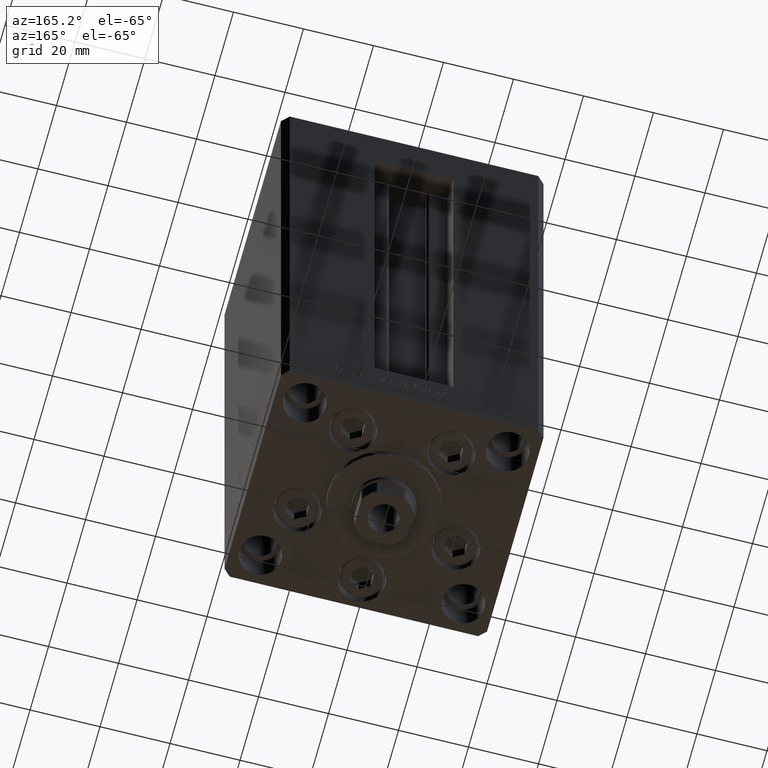
[diagram: clean part render]
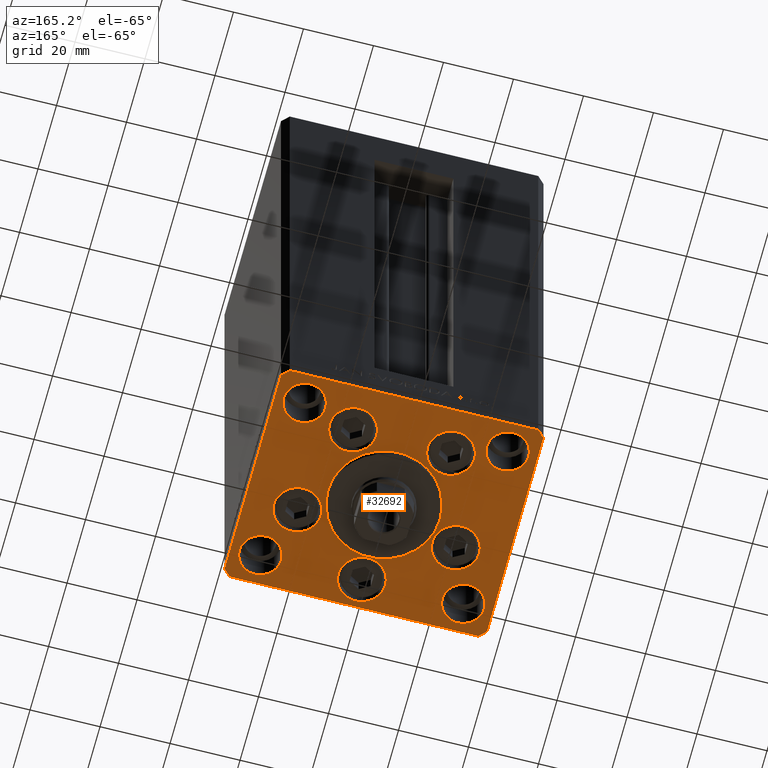
[diagram: same view with one face highlighted and labeled with its STEP entity id]
A machine part, auxiliary view. The second image highlights one B-rep face of the part: STEP entity #32692.
In plain terms, the highlighted planar face has unit normal (0, 0, -1).
Its self-contained STEP definition (entity closure, byte-faithful):
#3 = DIRECTION ( 'NONE',  ( 1.000000000000000000, 0.000000000000000000, 0.000000000000000000 ) ) ;
#294 = VERTEX_POINT ( 'NONE', #18620 ) ;
#488 = CARTESIAN_POINT ( 'NONE',  ( 29.00000000000000355, -23.99999999999999645, 0.000000000000000000 ) ) ;
#580 = ORIENTED_EDGE ( 'NONE', *, *, #16930, .F. ) ;
#890 = CARTESIAN_POINT ( 'NONE',  ( -29.00000000000000000, -23.99999999999999645, 0.000000000000000000 ) ) ;
#983 = DIRECTION ( 'NONE',  ( 0.000000000000000000, 0.000000000000000000, 1.000000000000000000 ) ) ;
#1258 = DIRECTION ( 'NONE',  ( 1.000000000000000000, 0.000000000000000000, 0.000000000000000000 ) ) ;
#1412 = VERTEX_POINT ( 'NONE', #14008 ) ;
#1589 = CIRCLE ( 'NONE', #36070, 6.750000000001552536 ) ;
#1816 = FACE_BOUND ( 'NONE', #3662, .T. ) ;
#2352 = AXIS2_PLACEMENT_3D ( 'NONE', #49417, #22529, #3695 ) ;
#2527 = AXIS2_PLACEMENT_3D ( 'NONE', #34456, #42223, #42983 ) ;
#2717 = ORIENTED_EDGE ( 'NONE', *, *, #40751, .F. ) ;
#2857 = ORIENTED_EDGE ( 'NONE', *, *, #9047, .F. ) ;
#2860 = EDGE_CURVE ( 'NONE', #9678, #3786, #19229, .T. ) ;
#3002 = CIRCLE ( 'NONE', #39102, 6.750000000000000000 ) ;
#3337 = VERTEX_POINT ( 'NONE', #17666 ) ;
#3507 = DIRECTION ( 'NONE',  ( 0.000000000000000000, 0.000000000000000000, 1.000000000000000000 ) ) ;
#3604 = VERTEX_POINT ( 'NONE', #10835 ) ;
#3662 = EDGE_LOOP ( 'NONE', ( #45549, #10054 ) ) ;
#3686 = VERTEX_POINT ( 'NONE', #44985 ) ;
#3695 = DIRECTION ( 'NONE',  ( 1.000000000000000000, 0.000000000000000000, 0.000000000000000000 ) ) ;
#3786 = VERTEX_POINT ( 'NONE', #7305 ) ;
#4022 = CARTESIAN_POINT ( 'NONE',  ( -15.87741699796953476, -8.000000000000000000, 0.000000000000000000 ) ) ;
#4068 = VERTEX_POINT ( 'NONE', #7674 ) ;
#4211 = VERTEX_POINT ( 'NONE', #27001 ) ;
#4235 = EDGE_CURVE ( 'NONE', #29524, #25006, #26377, .T. ) ;
#4247 = CARTESIAN_POINT ( 'NONE',  ( -35.50000000000000711, 32.49999999999997868, 0.000000000000000000 ) ) ;
#4305 = CARTESIAN_POINT ( 'NONE',  ( -37.50000000000001421, 30.50000000000000000, 0.000000000000000000 ) ) ;
#4428 = CARTESIAN_POINT ( 'NONE',  ( -35.50000000000001421, -32.50000000000000711, 0.000000000000000000 ) ) ;
#4666 = DIRECTION ( 'NONE',  ( 0.000000000000000000, 0.000000000000000000, 1.000000000000000000 ) ) ;
#4669 = EDGE_CURVE ( 'NONE', #3686, #3337, #33601, .T. ) ;
#4727 = AXIS2_PLACEMENT_3D ( 'NONE', #37861, #30091, #38347 ) ;
#5092 = DIRECTION ( 'NONE',  ( -0.000000000000000000, 0.000000000000000000, 1.000000000000000000 ) ) ;
#5242 = VERTEX_POINT ( 'NONE', #6525 ) ;
#5261 = EDGE_CURVE ( 'NONE', #43356, #49121, #18055, .T. ) ;
#5512 = DIRECTION ( 'NONE',  ( -0.7071067811865524577, 0.7071067811865426878, 0.000000000000000000 ) ) ;
#5581 = FACE_BOUND ( 'NONE', #34047, .T. ) ;
#5945 = CARTESIAN_POINT ( 'NONE',  ( 37.50000000000000711, -30.49999999999992895, 0.000000000000000000 ) ) ;
#6525 = CARTESIAN_POINT ( 'NONE',  ( 35.50000000000001421, -32.49999999999992184, 0.000000000000000000 ) ) ;
#6596 = CARTESIAN_POINT ( 'NONE',  ( 37.50000000000000711, 30.50000000000001421, 0.000000000000000000 ) ) ;
#6660 = ORIENTED_EDGE ( 'NONE', *, *, #4669, .F. ) ;
#6704 = CARTESIAN_POINT ( 'NONE',  ( 0.000000000000000000, -6.938893903907228378E-15, 0.000000000000000000 ) ) ;
#7025 = EDGE_CURVE ( 'NONE', #18608, #32186, #1589, .T. ) ;
#7101 = CARTESIAN_POINT ( 'NONE',  ( 35.00000000000000000, 24.00000000000000355, 0.000000000000000000 ) ) ;
#7122 = CIRCLE ( 'NONE', #4727, 5.999999999999998224 ) ;
#7300 = EDGE_CURVE ( 'NONE', #3337, #3686, #23233, .T. ) ;
#7305 = CARTESIAN_POINT ( 'NONE',  ( -29.37741699796953654, -8.000000000000000000, 0.000000000000000000 ) ) ;
#7674 = CARTESIAN_POINT ( 'NONE',  ( -16.00000000000000355, -6.938893903907228378E-15, 0.000000000000000000 ) ) ;
#7830 = CIRCLE ( 'NONE', #48745, 5.999999999999998224 ) ;
#7864 = EDGE_LOOP ( 'NONE', ( #46066, #41706 ) ) ;
#8295 = ORIENTED_EDGE ( 'NONE', *, *, #17358, .T. ) ;
#8547 = CARTESIAN_POINT ( 'NONE',  ( -20.74106857963324302, 19.50000000000000000, 0.000000000000000000 ) ) ;
#8678 = DIRECTION ( 'NONE',  ( 1.000000000000000000, 0.000000000000000000, 0.000000000000000000 ) ) ;
#9047 = EDGE_CURVE ( 'NONE', #32186, #18608, #24117, .T. ) ;
#9065 = VERTEX_POINT ( 'NONE', #13675 ) ;
#9119 = CIRCLE ( 'NONE', #37167, 6.000000000000001776 ) ;
#9678 = VERTEX_POINT ( 'NONE', #4022 ) ;
#9710 = LINE ( 'NONE', #5945, #43944 ) ;
#9767 = DIRECTION ( 'NONE',  ( 1.000000000000000000, 0.000000000000000000, 0.000000000000000000 ) ) ;
#9883 = CARTESIAN_POINT ( 'NONE',  ( -22.62741699796953299, -8.000000000000000000, 0.000000000000000000 ) ) ;
#9921 = ORIENTED_EDGE ( 'NONE', *, *, #42436, .T. ) ;
#10054 = ORIENTED_EDGE ( 'NONE', *, *, #44562, .F. ) ;
#10123 = ORIENTED_EDGE ( 'NONE', *, *, #38498, .F. ) ;
#10538 = DIRECTION ( 'NONE',  ( 0.000000000000000000, 0.000000000000000000, 1.000000000000000000 ) ) ;
#10592 = CIRCLE ( 'NONE', #12201, 16.00000000000000355 ) ;
#10835 = CARTESIAN_POINT ( 'NONE',  ( 20.74106857963323947, 19.50000000000000000, 0.000000000000000000 ) ) ;
#10853 = CARTESIAN_POINT ( 'NONE',  ( 35.50000000000000000, 32.49999999999999289, 0.000000000000000000 ) ) ;
#11042 = ORIENTED_EDGE ( 'NONE', *, *, #7025, .F. ) ;
#11302 = EDGE_CURVE ( 'NONE', #34282, #43356, #31625, .T. ) ;
#11325 = EDGE_LOOP ( 'NONE', ( #41308, #2717 ) ) ;
#11563 = EDGE_LOOP ( 'NONE', ( #25408, #40378 ) ) ;
#12133 = VERTEX_POINT ( 'NONE', #7101 ) ;
#12201 = AXIS2_PLACEMENT_3D ( 'NONE', #42683, #31894, #1258 ) ;
#12351 = ORIENTED_EDGE ( 'NONE', *, *, #17028, .F. ) ;
#12491 = CARTESIAN_POINT ( 'NONE',  ( -37.50000000000000000, -30.50000000000004263, 0.000000000000000000 ) ) ;
#12637 = CARTESIAN_POINT ( 'NONE',  ( 22.62741699796953299, -8.000000000000000000, 0.000000000000000000 ) ) ;
#13104 = ORIENTED_EDGE ( 'NONE', *, *, #5261, .T. ) ;
#13119 = FACE_BOUND ( 'NONE', #33331, .T. ) ;
#13416 = CARTESIAN_POINT ( 'NONE',  ( -22.62741699796953299, -8.000000000000000000, 0.000000000000000000 ) ) ;
#13541 = CARTESIAN_POINT ( 'NONE',  ( 37.50000000000000711, 30.50000000000001421, 0.000000000000000000 ) ) ;
#13675 = CARTESIAN_POINT ( 'NONE',  ( -7.241068579633241242, 19.50000000000000000, 0.000000000000000000 ) ) ;
#13790 = CIRCLE ( 'NONE', #2527, 6.000000000000001776 ) ;
#13933 = VERTEX_POINT ( 'NONE', #41581 ) ;
#13934 = EDGE_LOOP ( 'NONE', ( #12351, #37880 ) ) ;
#14008 = CARTESIAN_POINT ( 'NONE',  ( -35.00000000000000000, 24.00000000000000711, 0.000000000000000000 ) ) ;
#14140 = ORIENTED_EDGE ( 'NONE', *, *, #40772, .T. ) ;
#14365 = VECTOR ( 'NONE', #37394, 1000.000000000000000 ) ;
#14543 = ORIENTED_EDGE ( 'NONE', *, *, #7300, .F. ) ;
#14550 = DIRECTION ( 'NONE',  ( 1.000000000000000000, 0.000000000000000000, 0.000000000000000000 ) ) ;
#14997 = CARTESIAN_POINT ( 'NONE',  ( 16.00000000000000355, -4.979459025271462852E-15, 0.000000000000000000 ) ) ;
#15252 = AXIS2_PLACEMENT_3D ( 'NONE', #23822, #983, #31622 ) ;
#15651 = ORIENTED_EDGE ( 'NONE', *, *, #37162, .F. ) ;
#15793 = DIRECTION ( 'NONE',  ( 1.000000000000000000, 0.000000000000000000, 0.000000000000000000 ) ) ;
#16366 = ORIENTED_EDGE ( 'NONE', *, *, #11302, .T. ) ;
#16467 = EDGE_LOOP ( 'NONE', ( #47353, #14140, #19155, #8295, #38133, #9921, #16366, #13104 ) ) ;
#16760 = CARTESIAN_POINT ( 'NONE',  ( -23.00000000000000000, -23.99999999999999645, 0.000000000000000000 ) ) ;
#16930 = EDGE_CURVE ( 'NONE', #4211, #25996, #7830, .T. ) ;
#17025 = CARTESIAN_POINT ( 'NONE',  ( 29.00000000000000000, 24.00000000000000355, 0.000000000000000000 ) ) ;
#17028 = EDGE_CURVE ( 'NONE', #9065, #35268, #3002, .T. ) ;
#17146 = VECTOR ( 'NONE', #5512, 1000.000000000000000 ) ;
#17163 = DIRECTION ( 'NONE',  ( 1.000000000000000000, 0.000000000000000000, 0.000000000000000000 ) ) ;
#17228 = ORIENTED_EDGE ( 'NONE', *, *, #31614, .F. ) ;
#17358 = EDGE_CURVE ( 'NONE', #27590, #45080, #9710, .T. ) ;
#17666 = CARTESIAN_POINT ( 'NONE',  ( 15.87741699796952410, -8.000000000000000000, 0.000000000000000000 ) ) ;
#17761 = VECTOR ( 'NONE', #34634, 1000.000000000000000 ) ;
#17960 = CIRCLE ( 'NONE', #21236, 6.749999999999997335 ) ;
#18055 = LINE ( 'NONE', #41172, #14365 ) ;
#18229 = CIRCLE ( 'NONE', #20646, 6.749999999999999112 ) ;
#18490 = DIRECTION ( 'NONE',  ( 0.000000000000000000, 0.000000000000000000, 1.000000000000000000 ) ) ;
#18608 = VERTEX_POINT ( 'NONE', #22910 ) ;
#18620 = CARTESIAN_POINT ( 'NONE',  ( 23.00000000000000000, 24.00000000000000355, 0.000000000000000000 ) ) ;
#18637 = LINE ( 'NONE', #30197, #28638 ) ;
#18724 = VERTEX_POINT ( 'NONE', #40967 ) ;
#19104 = CARTESIAN_POINT ( 'NONE',  ( -35.00000000000000000, -23.99999999999999645, 0.000000000000000000 ) ) ;
#19155 = ORIENTED_EDGE ( 'NONE', *, *, #33429, .T. ) ;
#19229 = CIRCLE ( 'NONE', #45703, 6.749999999999999112 ) ;
#19234 = CARTESIAN_POINT ( 'NONE',  ( -29.00000000000000000, -23.99999999999999645, 0.000000000000000000 ) ) ;
#19447 = VECTOR ( 'NONE', #26161, 1000.000000000000000 ) ;
#19555 = AXIS2_PLACEMENT_3D ( 'NONE', #19234, #34326, #33598 ) ;
#19920 = EDGE_CURVE ( 'NONE', #25996, #4211, #7122, .T. ) ;
#19977 = EDGE_CURVE ( 'NONE', #49121, #44973, #31827, .T. ) ;
#19984 = CIRCLE ( 'NONE', #2352, 6.749999999999997335 ) ;
#20338 = CARTESIAN_POINT ( 'NONE',  ( 13.99106857963324124, 19.50000000000000000, 0.000000000000000000 ) ) ;
#20364 = AXIS2_PLACEMENT_3D ( 'NONE', #17025, #28826, #48172 ) ;
#20401 = DIRECTION ( 'NONE',  ( 1.000000000000000000, 0.000000000000000000, 0.000000000000000000 ) ) ;
#20646 = AXIS2_PLACEMENT_3D ( 'NONE', #9883, #39780, #17163 ) ;
#20820 = CARTESIAN_POINT ( 'NONE',  ( -13.99106857963324124, 19.50000000000000000, 0.000000000000000000 ) ) ;
#20896 = FACE_BOUND ( 'NONE', #36019, .T. ) ;
#20997 = AXIS2_PLACEMENT_3D ( 'NONE', #46613, #4666, #8678 ) ;
#21092 = VECTOR ( 'NONE', #46964, 1000.000000000000000 ) ;
#21215 = DIRECTION ( 'NONE',  ( 0.000000000000000000, 0.000000000000000000, 1.000000000000000000 ) ) ;
#21236 = AXIS2_PLACEMENT_3D ( 'NONE', #20338, #46972, #3 ) ;
#21514 = EDGE_CURVE ( 'NONE', #3604, #18724, #19984, .T. ) ;
#22200 = ORIENTED_EDGE ( 'NONE', *, *, #21514, .F. ) ;
#22478 = DIRECTION ( 'NONE',  ( 0.000000000000000000, 1.000000000000000000, 0.000000000000000000 ) ) ;
#22529 = DIRECTION ( 'NONE',  ( 0.000000000000000000, 0.000000000000000000, 1.000000000000000000 ) ) ;
#22643 = DIRECTION ( 'NONE',  ( 1.000000000000000000, 1.172770800660376149E-15, 0.000000000000000000 ) ) ;
#22910 = CARTESIAN_POINT ( 'NONE',  ( 6.750000000001552536, -24.00000000000001066, 0.000000000000000000 ) ) ;
#23233 = CIRCLE ( 'NONE', #15252, 6.750000000000009770 ) ;
#23822 = CARTESIAN_POINT ( 'NONE',  ( 22.62741699796953299, -8.000000000000000000, 0.000000000000000000 ) ) ;
#23841 = CARTESIAN_POINT ( 'NONE',  ( 35.50000000000001421, -32.49999999999992184, 0.000000000000000000 ) ) ;
#23844 = LINE ( 'NONE', #13541, #17146 ) ;
#23882 = VERTEX_POINT ( 'NONE', #14997 ) ;
#24117 = CIRCLE ( 'NONE', #24915, 6.750000000001552536 ) ;
#24161 = PLANE ( 'NONE',  #37106 ) ;
#24414 = CIRCLE ( 'NONE', #19555, 6.000000000000001776 ) ;
#24915 = AXIS2_PLACEMENT_3D ( 'NONE', #46594, #27500, #42817 ) ;
#24923 = DIRECTION ( 'NONE',  ( 1.000000000000000000, 0.000000000000000000, 0.000000000000000000 ) ) ;
#25006 = VERTEX_POINT ( 'NONE', #19104 ) ;
#25408 = ORIENTED_EDGE ( 'NONE', *, *, #26912, .F. ) ;
#25698 = DIRECTION ( 'NONE',  ( 1.000000000000000000, 0.000000000000000000, 0.000000000000000000 ) ) ;
#25996 = VERTEX_POINT ( 'NONE', #36421 ) ;
#26161 = DIRECTION ( 'NONE',  ( -1.000000000000000000, -1.954618001100627573E-16, 0.000000000000000000 ) ) ;
#26377 = CIRCLE ( 'NONE', #37595, 6.000000000000001776 ) ;
#26406 = LINE ( 'NONE', #10853, #19447 ) ;
#26912 = EDGE_CURVE ( 'NONE', #12133, #294, #13790, .T. ) ;
#27001 = CARTESIAN_POINT ( 'NONE',  ( 23.00000000000000711, -23.99999999999999645, 0.000000000000000000 ) ) ;
#27246 = EDGE_CURVE ( 'NONE', #29772, #1412, #44969, .T. ) ;
#27500 = DIRECTION ( 'NONE',  ( 0.000000000000000000, 0.000000000000000000, 1.000000000000000000 ) ) ;
#27590 = VERTEX_POINT ( 'NONE', #38338 ) ;
#28158 = DIRECTION ( 'NONE',  ( 1.000000000000000000, 0.000000000000000000, 0.000000000000000000 ) ) ;
#28638 = VECTOR ( 'NONE', #22643, 1000.000000000000000 ) ;
#28826 = DIRECTION ( 'NONE',  ( 0.000000000000000000, 0.000000000000000000, 1.000000000000000000 ) ) ;
#29060 = CARTESIAN_POINT ( 'NONE',  ( -23.00000000000000000, 24.00000000000000711, 0.000000000000000000 ) ) ;
#29524 = VERTEX_POINT ( 'NONE', #16760 ) ;
#29772 = VERTEX_POINT ( 'NONE', #29060 ) ;
#29806 = EDGE_CURVE ( 'NONE', #35268, #9065, #42636, .T. ) ;
#30091 = DIRECTION ( 'NONE',  ( 0.000000000000000000, 0.000000000000000000, 1.000000000000000000 ) ) ;
#30197 = CARTESIAN_POINT ( 'NONE',  ( -35.50000000000001421, -32.50000000000000711, 0.000000000000000000 ) ) ;
#30627 = CARTESIAN_POINT ( 'NONE',  ( -29.00000000000000000, 24.00000000000000711, 0.000000000000000000 ) ) ;
#30873 = DIRECTION ( 'NONE',  ( 1.000000000000000000, 0.000000000000000000, 0.000000000000000000 ) ) ;
#31022 = ORIENTED_EDGE ( 'NONE', *, *, #19920, .F. ) ;
#31090 = EDGE_LOOP ( 'NONE', ( #6660, #14543 ) ) ;
#31614 = EDGE_CURVE ( 'NONE', #23882, #4068, #10592, .T. ) ;
#31622 = DIRECTION ( 'NONE',  ( 1.000000000000000000, 0.000000000000000000, 0.000000000000000000 ) ) ;
#31625 = LINE ( 'NONE', #4247, #17761 ) ;
#31635 = DIRECTION ( 'NONE',  ( 0.000000000000000000, 0.000000000000000000, 1.000000000000000000 ) ) ;
#31827 = LINE ( 'NONE', #12491, #32803 ) ;
#31894 = DIRECTION ( 'NONE',  ( 0.000000000000000000, 0.000000000000000000, 1.000000000000000000 ) ) ;
#32186 = VERTEX_POINT ( 'NONE', #37804 ) ;
#32269 = AXIS2_PLACEMENT_3D ( 'NONE', #30627, #3507, #30873 ) ;
#32513 = CIRCLE ( 'NONE', #39698, 16.00000000000000355 ) ;
#32692 = ADVANCED_FACE ( 'NONE', ( #20896, #33378, #35967, #41152, #5581, #36218, #47534, #1816, #47777, #13119, #47037 ), #24161, .T. ) ;
#32803 = VECTOR ( 'NONE', #38854, 1000.000000000000000 ) ;
#33249 = DIRECTION ( 'NONE',  ( 0.000000000000000000, 0.000000000000000000, 1.000000000000000000 ) ) ;
#33331 = EDGE_LOOP ( 'NONE', ( #31022, #580 ) ) ;
#33378 = FACE_BOUND ( 'NONE', #13934, .T. ) ;
#33429 = EDGE_CURVE ( 'NONE', #5242, #27590, #41936, .T. ) ;
#33598 = DIRECTION ( 'NONE',  ( 1.000000000000000000, 0.000000000000000000, 0.000000000000000000 ) ) ;
#33601 = CIRCLE ( 'NONE', #40015, 6.750000000000009770 ) ;
#34047 = EDGE_LOOP ( 'NONE', ( #11042, #2857 ) ) ;
#34282 = VERTEX_POINT ( 'NONE', #46403 ) ;
#34326 = DIRECTION ( 'NONE',  ( 0.000000000000000000, 0.000000000000000000, 1.000000000000000000 ) ) ;
#34456 = CARTESIAN_POINT ( 'NONE',  ( 29.00000000000000000, 24.00000000000000355, 0.000000000000000000 ) ) ;
#34634 = DIRECTION ( 'NONE',  ( -0.7071067811865524577, -0.7071067811865426878, 0.000000000000000000 ) ) ;
#35268 = VERTEX_POINT ( 'NONE', #8547 ) ;
#35488 = DIRECTION ( 'NONE',  ( 0.000000000000000000, 0.000000000000000000, 1.000000000000000000 ) ) ;
#35942 = EDGE_CURVE ( 'NONE', #45080, #13933, #23844, .T. ) ;
#35967 = FACE_BOUND ( 'NONE', #45373, .T. ) ;
#36019 = EDGE_LOOP ( 'NONE', ( #10123, #17228 ) ) ;
#36070 = AXIS2_PLACEMENT_3D ( 'NONE', #42977, #38705, #28158 ) ;
#36218 = FACE_BOUND ( 'NONE', #11325, .T. ) ;
#36421 = CARTESIAN_POINT ( 'NONE',  ( 35.00000000000000000, -23.99999999999999645, 0.000000000000000000 ) ) ;
#37106 = AXIS2_PLACEMENT_3D ( 'NONE', #44002, #5092, #20401 ) ;
#37162 = EDGE_CURVE ( 'NONE', #18724, #3604, #17960, .T. ) ;
#37167 = AXIS2_PLACEMENT_3D ( 'NONE', #42154, #10538, #14550 ) ;
#37394 = DIRECTION ( 'NONE',  ( 2.275047181608926165E-16, -1.000000000000000000, 0.000000000000000000 ) ) ;
#37595 = AXIS2_PLACEMENT_3D ( 'NONE', #890, #21215, #44079 ) ;
#37804 = CARTESIAN_POINT ( 'NONE',  ( -6.750000000001552536, -24.00000000000001066, 0.000000000000000000 ) ) ;
#37861 = CARTESIAN_POINT ( 'NONE',  ( 29.00000000000000355, -23.99999999999999645, 0.000000000000000000 ) ) ;
#37880 = ORIENTED_EDGE ( 'NONE', *, *, #29806, .F. ) ;
#38133 = ORIENTED_EDGE ( 'NONE', *, *, #35942, .T. ) ;
#38338 = CARTESIAN_POINT ( 'NONE',  ( 37.50000000000000711, -30.49999999999992895, 0.000000000000000000 ) ) ;
#38347 = DIRECTION ( 'NONE',  ( 1.000000000000000000, 0.000000000000000000, 0.000000000000000000 ) ) ;
#38498 = EDGE_CURVE ( 'NONE', #4068, #23882, #32513, .T. ) ;
#38705 = DIRECTION ( 'NONE',  ( 0.000000000000000000, 0.000000000000000000, 1.000000000000000000 ) ) ;
#38854 = DIRECTION ( 'NONE',  ( 0.7071067811865512365, -0.7071067811865439090, 0.000000000000000000 ) ) ;
#39102 = AXIS2_PLACEMENT_3D ( 'NONE', #20820, #31635, #9767 ) ;
#39698 = AXIS2_PLACEMENT_3D ( 'NONE', #6704, #18490, #45363 ) ;
#39780 = DIRECTION ( 'NONE',  ( 0.000000000000000000, 0.000000000000000000, 1.000000000000000000 ) ) ;
#40015 = AXIS2_PLACEMENT_3D ( 'NONE', #12637, #35488, #24923 ) ;
#40378 = ORIENTED_EDGE ( 'NONE', *, *, #44780, .F. ) ;
#40751 = EDGE_CURVE ( 'NONE', #3786, #9678, #18229, .T. ) ;
#40772 = EDGE_CURVE ( 'NONE', #44973, #5242, #18637, .T. ) ;
#40967 = CARTESIAN_POINT ( 'NONE',  ( 7.241068579633242130, 19.50000000000000000, 0.000000000000000000 ) ) ;
#41152 = FACE_BOUND ( 'NONE', #31090, .T. ) ;
#41172 = CARTESIAN_POINT ( 'NONE',  ( -37.50000000000001421, 30.50000000000000000, 0.000000000000000000 ) ) ;
#41308 = ORIENTED_EDGE ( 'NONE', *, *, #2860, .F. ) ;
#41581 = CARTESIAN_POINT ( 'NONE',  ( 35.50000000000000000, 32.49999999999999289, 0.000000000000000000 ) ) ;
#41706 = ORIENTED_EDGE ( 'NONE', *, *, #45785, .F. ) ;
#41936 = LINE ( 'NONE', #23841, #21092 ) ;
#42005 = CIRCLE ( 'NONE', #20364, 6.000000000000001776 ) ;
#42154 = CARTESIAN_POINT ( 'NONE',  ( -29.00000000000000000, 24.00000000000000711, 0.000000000000000000 ) ) ;
#42223 = DIRECTION ( 'NONE',  ( 0.000000000000000000, 0.000000000000000000, 1.000000000000000000 ) ) ;
#42436 = EDGE_CURVE ( 'NONE', #13933, #34282, #26406, .T. ) ;
#42636 = CIRCLE ( 'NONE', #20997, 6.750000000000000000 ) ;
#42683 = CARTESIAN_POINT ( 'NONE',  ( 0.000000000000000000, -6.938893903907228378E-15, 0.000000000000000000 ) ) ;
#42817 = DIRECTION ( 'NONE',  ( 1.000000000000000000, 0.000000000000000000, 0.000000000000000000 ) ) ;
#42931 = DIRECTION ( 'NONE',  ( 0.000000000000000000, 0.000000000000000000, 1.000000000000000000 ) ) ;
#42977 = CARTESIAN_POINT ( 'NONE',  ( 0.000000000000000000, -24.00000000000001066, 0.000000000000000000 ) ) ;
#42983 = DIRECTION ( 'NONE',  ( 1.000000000000000000, 0.000000000000000000, 0.000000000000000000 ) ) ;
#43356 = VERTEX_POINT ( 'NONE', #4305 ) ;
#43477 = CARTESIAN_POINT ( 'NONE',  ( -37.50000000000000000, -30.50000000000004263, 0.000000000000000000 ) ) ;
#43944 = VECTOR ( 'NONE', #22478, 1000.000000000000000 ) ;
#44002 = CARTESIAN_POINT ( 'NONE',  ( 0.000000000000000000, 0.000000000000000000, 0.000000000000000000 ) ) ;
#44079 = DIRECTION ( 'NONE',  ( 1.000000000000000000, 0.000000000000000000, 0.000000000000000000 ) ) ;
#44562 = EDGE_CURVE ( 'NONE', #1412, #29772, #9119, .T. ) ;
#44780 = EDGE_CURVE ( 'NONE', #294, #12133, #42005, .T. ) ;
#44969 = CIRCLE ( 'NONE', #32269, 6.000000000000001776 ) ;
#44973 = VERTEX_POINT ( 'NONE', #4428 ) ;
#44985 = CARTESIAN_POINT ( 'NONE',  ( 29.37741699796954364, -8.000000000000000000, 0.000000000000000000 ) ) ;
#45080 = VERTEX_POINT ( 'NONE', #6596 ) ;
#45363 = DIRECTION ( 'NONE',  ( 1.000000000000000000, 0.000000000000000000, 0.000000000000000000 ) ) ;
#45373 = EDGE_LOOP ( 'NONE', ( #22200, #15651 ) ) ;
#45549 = ORIENTED_EDGE ( 'NONE', *, *, #27246, .F. ) ;
#45703 = AXIS2_PLACEMENT_3D ( 'NONE', #13416, #33249, #25698 ) ;
#45785 = EDGE_CURVE ( 'NONE', #25006, #29524, #24414, .T. ) ;
#46066 = ORIENTED_EDGE ( 'NONE', *, *, #4235, .F. ) ;
#46403 = CARTESIAN_POINT ( 'NONE',  ( -35.50000000000000711, 32.49999999999997868, 0.000000000000000000 ) ) ;
#46594 = CARTESIAN_POINT ( 'NONE',  ( 0.000000000000000000, -24.00000000000001066, 0.000000000000000000 ) ) ;
#46613 = CARTESIAN_POINT ( 'NONE',  ( -13.99106857963324124, 19.50000000000000000, 0.000000000000000000 ) ) ;
#46964 = DIRECTION ( 'NONE',  ( 0.7071067811865463515, 0.7071067811865487940, 0.000000000000000000 ) ) ;
#46972 = DIRECTION ( 'NONE',  ( 0.000000000000000000, 0.000000000000000000, 1.000000000000000000 ) ) ;
#47037 = FACE_OUTER_BOUND ( 'NONE', #16467, .T. ) ;
#47353 = ORIENTED_EDGE ( 'NONE', *, *, #19977, .T. ) ;
#47534 = FACE_BOUND ( 'NONE', #11563, .T. ) ;
#47777 = FACE_BOUND ( 'NONE', #7864, .T. ) ;
#48172 = DIRECTION ( 'NONE',  ( 1.000000000000000000, 0.000000000000000000, 0.000000000000000000 ) ) ;
#48745 = AXIS2_PLACEMENT_3D ( 'NONE', #488, #42931, #15793 ) ;
#49121 = VERTEX_POINT ( 'NONE', #43477 ) ;
#49417 = CARTESIAN_POINT ( 'NONE',  ( 13.99106857963324124, 19.50000000000000000, 0.000000000000000000 ) ) ;